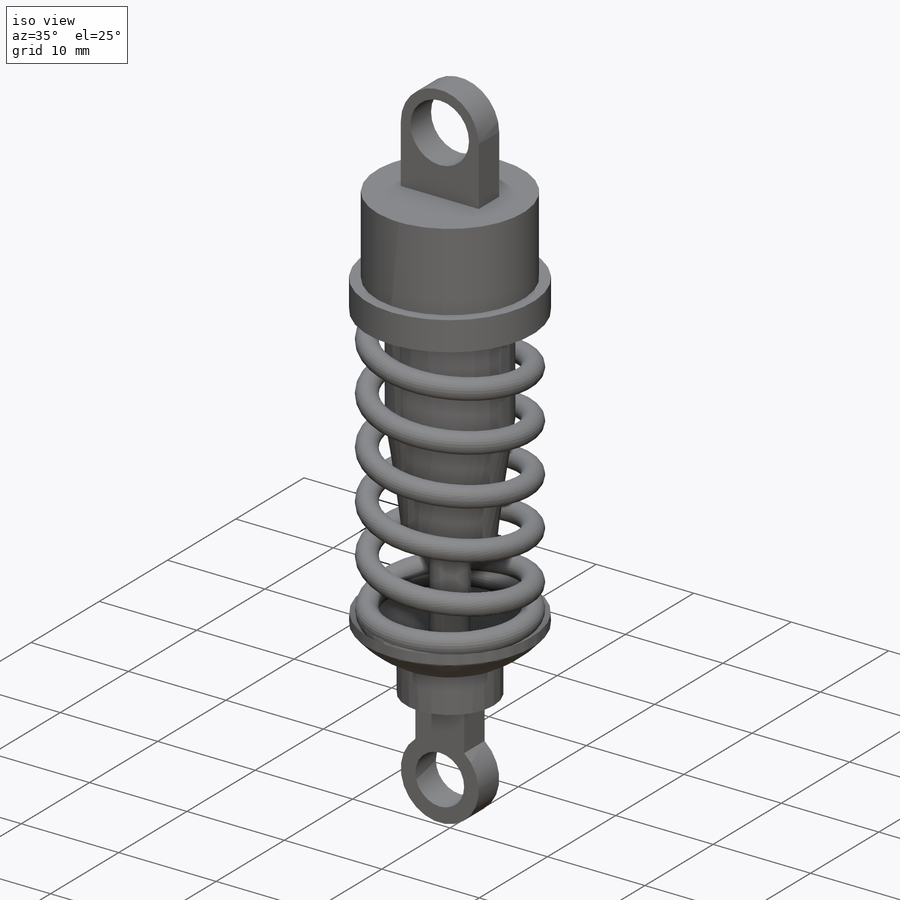
[diagram: iso view]
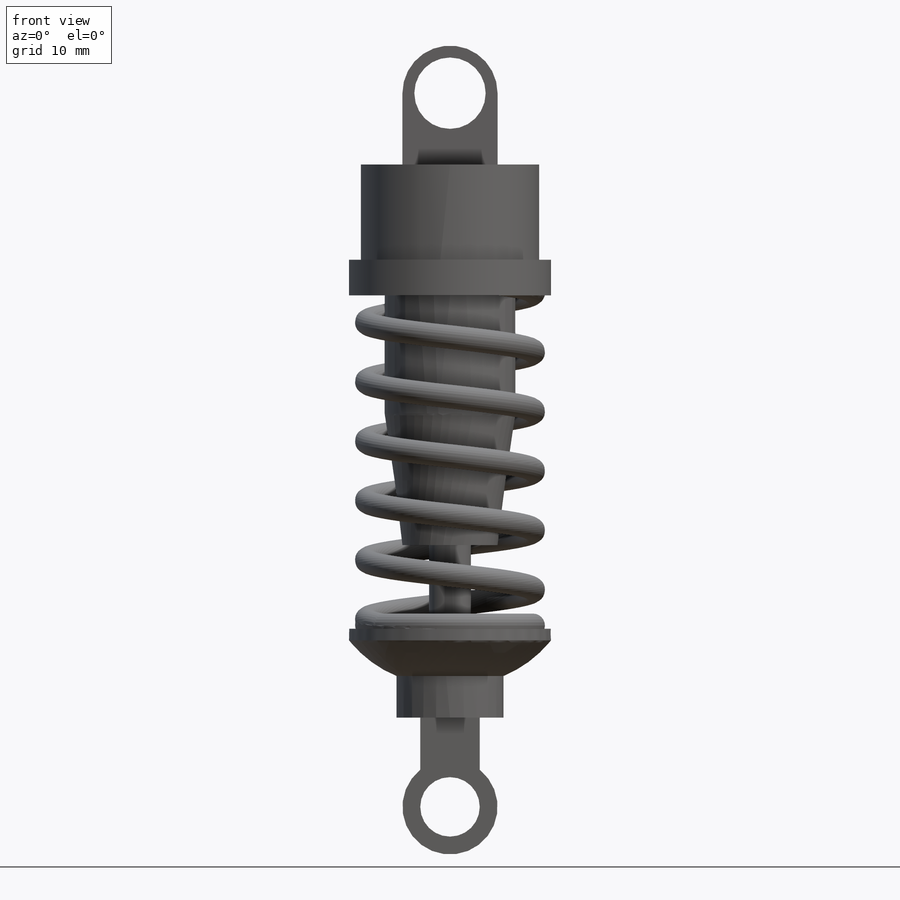
[diagram: front view]
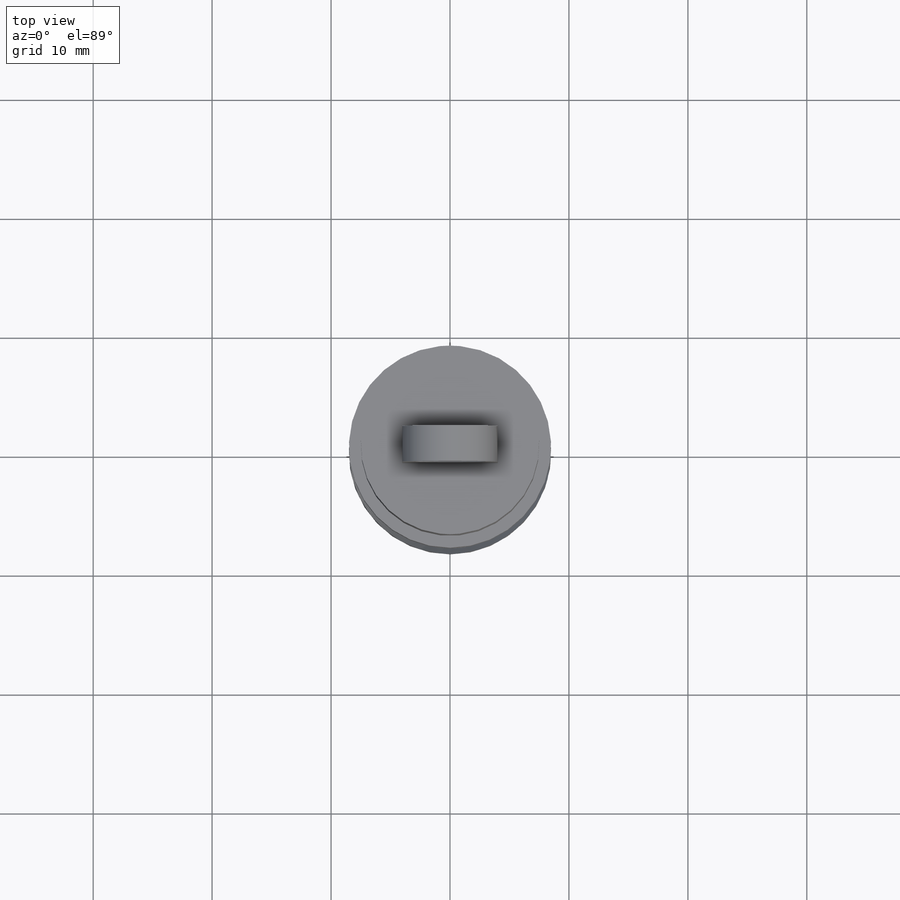
[diagram: top view]
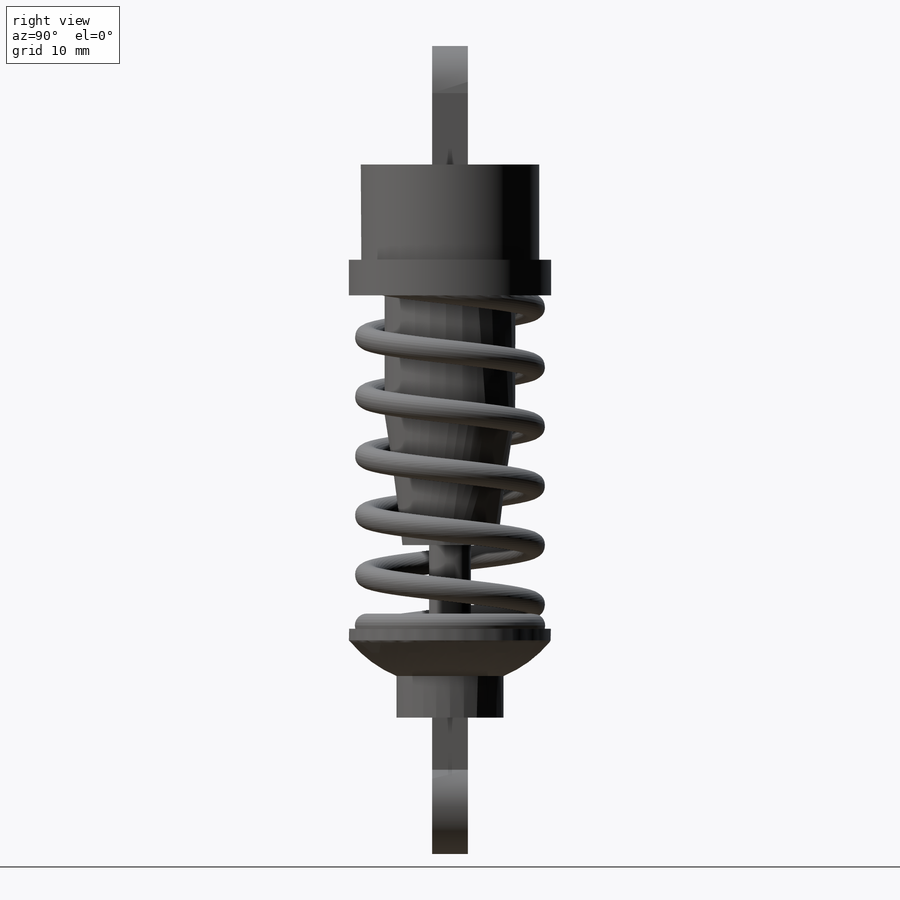
[diagram: right view]
SOLIDWORKS PART (.sldprt)
format: sldprt  version: not decoded by parser v0  size: 614,912 bytes
history: native  units: mm
features: sketch x16, extrude x8, plane x5, cut_extrude x3, fillet x3, material x1, revolve x1, helix x1, sweep x1 (+9 scaffold rows collapsed)
feature tree (48):
  scaffold x9  (default folders/planes/origin — collapsed)
  material  "Material <not specified>"
  plane  "Plano frontal"
  plane  "Plano superior"
  plane  "Plano direito"
  sketch  "Esboço1"  dims[D1=15.0mm]
  extrude  "Ressalto-extrusão1"  Depth=8mm
  sketch  "Esboço2"  dims[D1=~9.816309mm]
  extrude  "Ressalto-extrusão2"  Depth=3mm
  sketch  "Esboço3"  dims[D1=8.0mm D2=3.0mm]
  extrude  "Ressalto-extrusão3"  Depth=10mm
  sketch  "Esboço4"  dims[c1.D1=4.0mm c2.D1=~175.694666deg]
  cut_extrude  "Corte-extrusão1"  [1 undecoded]
  sketch  "Esboço5"  dims[D1=~3.156471mm]
  cut_extrude  "Corte-extrusão2"  [1 undecoded]
  sketch  "Esboço6"  dims[D1=11.0mm]
  extrude  "Ressalto-extrusão4"  Depth=10mm
  plane  "Plano1"  Offset=11mm
  sketch  "Esboço7"  dims[D1=~3.637474mm]
  fillet  "Filete1"  Radius=1mm
  sketch  "Esboço8"  dims[D1=1.7847mm]
  extrude  "Ressalto-extrusão5"  Depth=10mm
  sketch  "Esboço9"  dims[D1=6.0mm D2=1.0mm]
  revolve  "Revolução1"  Angle=360deg
  sketch  "Esboço10"  dims[D1=~4.668694mm]
  extrude  "Ressalto-extrusão6"  Depth=3.5mm
  sketch  "Esboço11"  dims[D1=3.0mm D2=5.0mm]
  extrude  "Ressalto-extrusão7"  Depth=5mm
  sketch  "Esboço13"  dims[c1.D1=~5.267279mm c1.D2=8.0mm c2.D1=60.0mm]
  extrude  "Ressalto-extrusão8"  Depth=1.5mm
  sketch  "Esboço14"  dims[D1=5.0mm]
  cut_extrude  "Corte-extrusão3"  Depth=10mm
  fillet  "Filete2"  Radius=10mm
  fillet  "Filete3"  Radius=3mm
  plane  "Plano2"  Offset=1mm
  sketch  "Esboço16"  dims[D1=~6.79167mm]
  sketch  "Esboço19"  dims[D1=2.0mm]
  helix  "Hélice/Espiral1"  Pitch=30.5mm
  sweep  "Varredura1"
  sketch  "Esboço22"  dims[Revolução2=0.0 D1=360.0deg]
decode coverage: 30 of 33 modeling features carry decoded parameters
note: ~ marks probable driven/reference dimensions
note: 2 parameter values undecoded
note: suppression state not decoded; provenance and decode notes live in map.json
